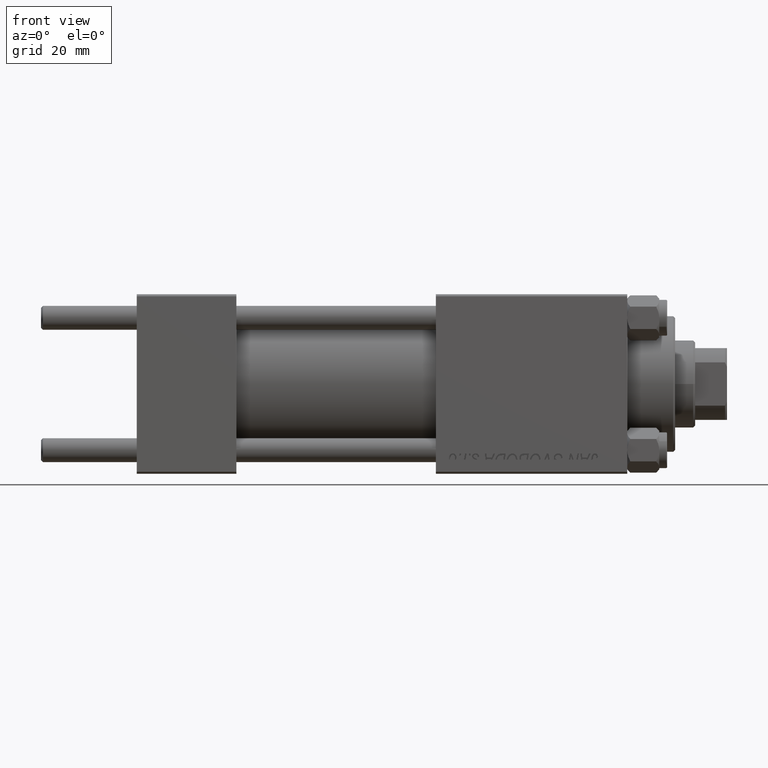
[diagram: clean part render]
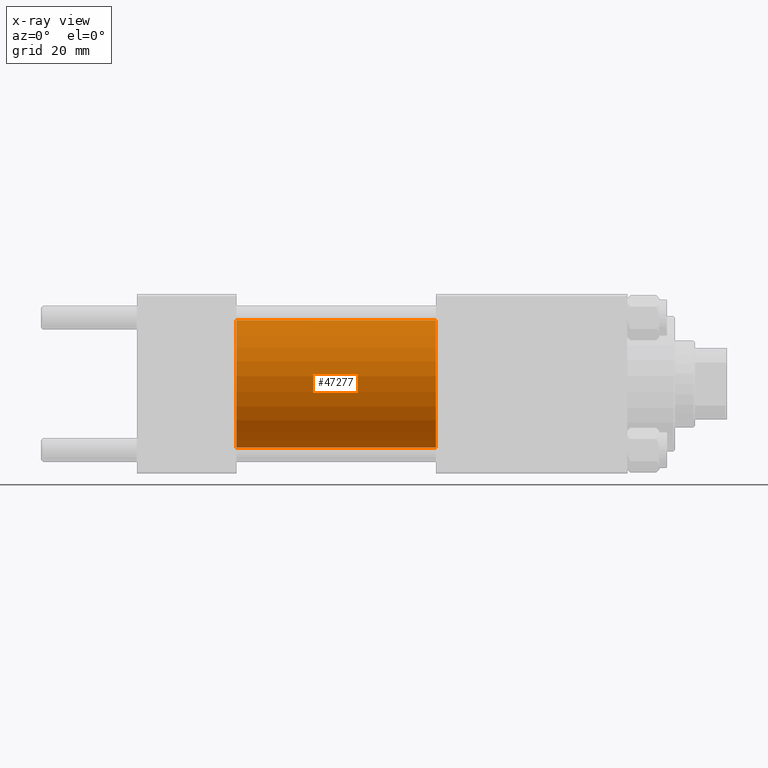
[diagram: x-ray — body ghosted, one internal face saturated and labeled with its STEP entity id]
A machine part, front view, then the same camera in x-ray: the body is ghosted and one INTERNAL B-rep face — a face not visible from any outside direction — is saturated and labeled: STEP entity #47277.
In plain terms, the highlighted cylindrical surface (partial cylindrical patch) has radius 16 mm, axis along (-1, -0, -0).
Its self-contained STEP definition (entity closure, byte-faithful):
#3042 = CARTESIAN_POINT ( 'NONE',  ( 75.00000000000001421, 0.000000000000000000, 16.00000000000000000 ) ) ;
#4300 = EDGE_CURVE ( 'NONE', #28999, #44685, #22851, .T. ) ;
#5545 = VECTOR ( 'NONE', #26316, 1000.000000000000000 ) ;
#6865 = DIRECTION ( 'NONE',  ( 0.000000000000000000, 0.000000000000000000, 1.000000000000000000 ) ) ;
#7537 = EDGE_CURVE ( 'NONE', #28295, #30520, #30113, .T. ) ;
#7654 = CARTESIAN_POINT ( 'NONE',  ( 75.00000000000001421, 0.000000000000000000, 16.00000000000000000 ) ) ;
#10396 = CARTESIAN_POINT ( 'NONE',  ( 75.00000000000001421, 0.000000000000000000, 0.000000000000000000 ) ) ;
#10643 = CYLINDRICAL_SURFACE ( 'NONE', #13654, 16.00000000000000000 ) ;
#10985 = CARTESIAN_POINT ( 'NONE',  ( 75.00000000000001421, 1.959434878635765131E-15, -16.00000000000000000 ) ) ;
#13654 = AXIS2_PLACEMENT_3D ( 'NONE', #10396, #41399, #6865 ) ;
#14699 = AXIS2_PLACEMENT_3D ( 'NONE', #24678, #40045, #20892 ) ;
#14914 = DIRECTION ( 'NONE',  ( 1.000000000000000000, 0.000000000000000000, 0.000000000000000000 ) ) ;
#15015 = CARTESIAN_POINT ( 'NONE',  ( 75.00000000000001421, 1.959434878635765131E-15, -16.00000000000000000 ) ) ;
#15633 = ORIENTED_EDGE ( 'NONE', *, *, #20518, .F. ) ;
#17207 = EDGE_LOOP ( 'NONE', ( #33238, #21057, #15633, #40110 ) ) ;
#17218 = AXIS2_PLACEMENT_3D ( 'NONE', #31074, #14914, #38379 ) ;
#18563 = DIRECTION ( 'NONE',  ( -1.000000000000000000, -0.000000000000000000, -0.000000000000000000 ) ) ;
#18714 = CIRCLE ( 'NONE', #14699, 16.00000000000000000 ) ;
#20518 = EDGE_CURVE ( 'NONE', #30520, #44685, #18714, .T. ) ;
#20892 = DIRECTION ( 'NONE',  ( 0.000000000000000000, 0.000000000000000000, -1.000000000000000000 ) ) ;
#21057 = ORIENTED_EDGE ( 'NONE', *, *, #4300, .T. ) ;
#22851 = LINE ( 'NONE', #10985, #24732 ) ;
#24565 = EDGE_CURVE ( 'NONE', #28295, #28999, #44567, .T. ) ;
#24678 = CARTESIAN_POINT ( 'NONE',  ( 25.00000000000000000, 0.000000000000000000, 0.000000000000000000 ) ) ;
#24732 = VECTOR ( 'NONE', #18563, 1000.000000000000000 ) ;
#25071 = CARTESIAN_POINT ( 'NONE',  ( 25.00000000000000000, 0.000000000000000000, 16.00000000000000000 ) ) ;
#26316 = DIRECTION ( 'NONE',  ( -1.000000000000000000, -0.000000000000000000, -0.000000000000000000 ) ) ;
#28295 = VERTEX_POINT ( 'NONE', #3042 ) ;
#28999 = VERTEX_POINT ( 'NONE', #15015 ) ;
#30113 = LINE ( 'NONE', #7654, #5545 ) ;
#30520 = VERTEX_POINT ( 'NONE', #25071 ) ;
#31074 = CARTESIAN_POINT ( 'NONE',  ( 75.00000000000001421, 0.000000000000000000, 0.000000000000000000 ) ) ;
#33075 = CARTESIAN_POINT ( 'NONE',  ( 25.00000000000000000, 1.959434878635765131E-15, -16.00000000000000000 ) ) ;
#33238 = ORIENTED_EDGE ( 'NONE', *, *, #24565, .T. ) ;
#38379 = DIRECTION ( 'NONE',  ( 0.000000000000000000, 0.000000000000000000, -1.000000000000000000 ) ) ;
#40045 = DIRECTION ( 'NONE',  ( 1.000000000000000000, 0.000000000000000000, 0.000000000000000000 ) ) ;
#40110 = ORIENTED_EDGE ( 'NONE', *, *, #7537, .F. ) ;
#41156 = FACE_OUTER_BOUND ( 'NONE', #17207, .T. ) ;
#41399 = DIRECTION ( 'NONE',  ( -1.000000000000000000, -0.000000000000000000, -0.000000000000000000 ) ) ;
#44567 = CIRCLE ( 'NONE', #17218, 16.00000000000000000 ) ;
#44685 = VERTEX_POINT ( 'NONE', #33075 ) ;
#47277 = ADVANCED_FACE ( 'NONE', ( #41156 ), #10643, .F. ) ;